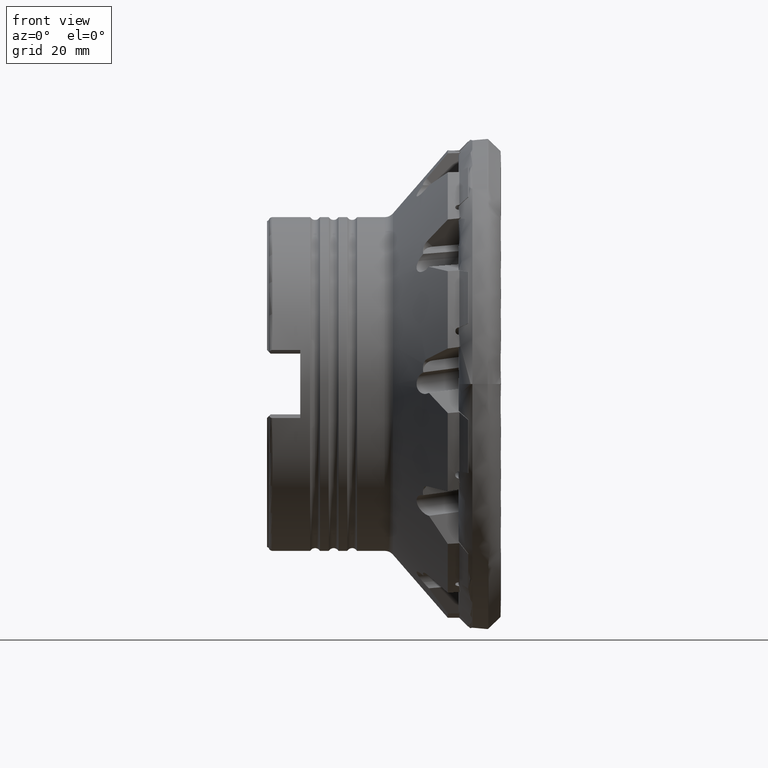
[diagram: clean part render]
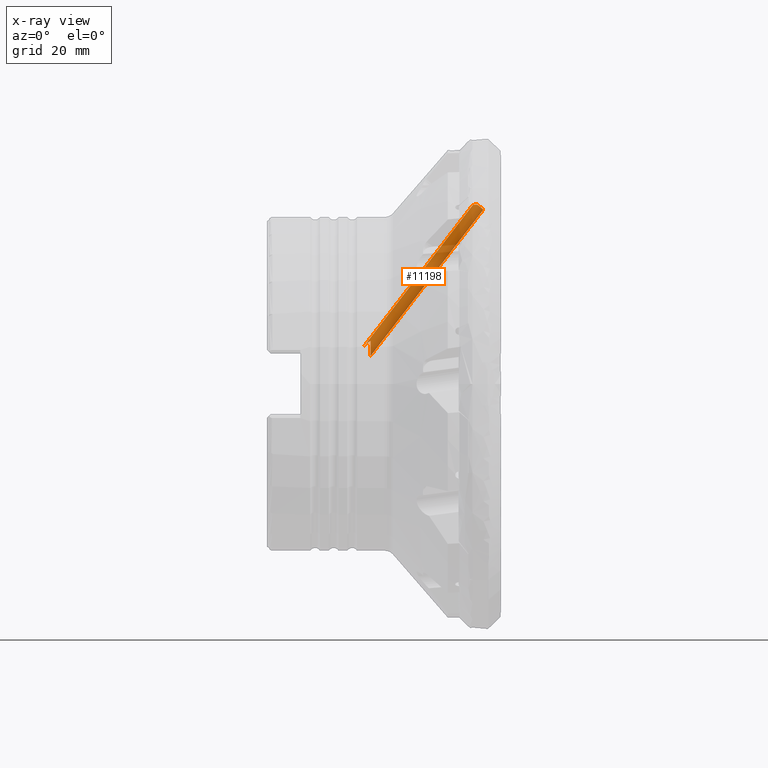
[diagram: x-ray — body ghosted, one internal face saturated and labeled with its STEP entity id]
A machine part, front view, then the same camera in x-ray: the body is ghosted and one INTERNAL B-rep face — a face not visible from any outside direction — is saturated and labeled: STEP entity #11198.
In plain terms, the highlighted cylindrical surface (edge-blend (fillet) strip) has radius 1.5 mm, axis along (-0.604, -0.1464, -0.7834).
Its self-contained STEP definition (entity closure, byte-faithful):
#129 = CARTESIAN_POINT ( 'NONE',  ( -5.540160540524638600, 23.20102953590737400, 48.34085867472153800 ) ) ;
#466 = LINE ( 'NONE', #20754, #5932 ) ;
#1017 = ORIENTED_EDGE ( 'NONE', *, *, #17368, .T. ) ;
#1099 = EDGE_CURVE ( 'NONE', #21094, #21020, #18274, .T. ) ;
#1325 = CARTESIAN_POINT ( 'NONE',  ( -34.14999999999999900, 16.47185018384749000, 11.60606098212838300 ) ) ;
#1823 = CYLINDRICAL_SURFACE ( 'NONE', #4550, 1.500000000000000400 ) ;
#1941 = B_SPLINE_CURVE_WITH_KNOTS ( 'NONE', 3,
 ( #13584, #129, #15275, #5213, #16931, #6880, #18637, #8560, #20363, #10277 ),
 .UNSPECIFIED., .F., .F.,
 ( 4, 2, 2, 2, 4 ),
 ( 3.415202341432597800E-015, 0.0004763234008006481600, 0.0009526468015978812000, 0.001428970202395114200, 0.001905293603192347200 ),
 .UNSPECIFIED. ) ;
#2245 = CIRCLE ( 'NONE', #6708, 1.499999999999999300 ) ;
#2263 = VERTEX_POINT ( 'NONE', #12490 ) ;
#4550 = AXIS2_PLACEMENT_3D ( 'NONE', #10368, #20442, #8806 ) ;
#5213 = CARTESIAN_POINT ( 'NONE',  ( -5.963811036317657100, 23.41961788925818800, 48.34775871760438500 ) ) ;
#5682 = CARTESIAN_POINT ( 'NONE',  ( -5.038579276834702200, 24.52045439170525000, 47.80845818798745500 ) ) ;
#5932 = VECTOR ( 'NONE', #20823, 1000.000000000000200 ) ;
#6244 = CARTESIAN_POINT ( 'NONE',  ( -34.14999999999999900, 15.70037446949612900, 7.595092474737160000 ) ) ;
#6645 = ORIENTED_EDGE ( 'NONE', *, *, #13342, .T. ) ;
#6708 = AXIS2_PLACEMENT_3D ( 'NONE', #5682, #17405, #7358 ) ;
#6762 = FACE_OUTER_BOUND ( 'NONE', #8168, .T. ) ;
#6880 = CARTESIAN_POINT ( 'NONE',  ( -6.322273186589583800, 23.73438040198447400, 48.31065290393135600 ) ) ;
#7148 = VERTEX_POINT ( 'NONE', #19391 ) ;
#7358 = DIRECTION ( 'NONE',  ( -0.7660444431189792300, 0.3778210773300734200, 0.5200261000100627800 ) ) ;
#7862 = VECTOR ( 'NONE', #15959, 1000.000000000000200 ) ;
#8168 = EDGE_LOOP ( 'NONE', ( #1017, #6645, #12653, #15627, #16958, #17078 ) ) ;
#8560 = CARTESIAN_POINT ( 'NONE',  ( -6.588451538194158600, 24.12251665075414700, 48.21669225176428600 ) ) ;
#8806 = DIRECTION ( 'NONE',  ( -0.7919367882781241900, 0.0000000000000000000, 0.6106030816919690900 ) ) ;
#9628 = EDGE_CURVE ( 'NONE', #7148, #21020, #12356, .T. ) ;
#9633 = CARTESIAN_POINT ( 'NONE',  ( -34.14999999999999900, 16.47185018384749000, 11.60606098212838300 ) ) ;
#10076 = CARTESIAN_POINT ( 'NONE',  ( -34.50051525135749100, 16.57684098665976800, 11.45705325441882700 ) ) ;
#10247 = VERTEX_POINT ( 'NONE', #11599 ) ;
#10277 = CARTESIAN_POINT ( 'NONE',  ( -6.695526947078620900, 24.40675863515932800, 48.11602654018397400 ) ) ;
#10368 = CARTESIAN_POINT ( 'NONE',  ( -5.038579276834702200, 24.52045439170525000, 47.80845818798745500 ) ) ;
#10894 = CARTESIAN_POINT ( 'NONE',  ( -35.65373505611028500, 17.16569651891070700, 10.55796138825414800 ) ) ;
#10900 = CARTESIAN_POINT ( 'NONE',  ( -6.226484459251889100, 24.52045439170525000, 48.72436281052541300 ) ) ;
#11198 = ADVANCED_FACE ( 'NONE', ( #6762 ), #1823, .F. ) ;
#11530 = CARTESIAN_POINT ( 'NONE',  ( -5.385451936854742900, 23.15771765600368700, 48.33059604995501200 ) ) ;
#11599 = CARTESIAN_POINT ( 'NONE',  ( -34.14999999999999900, 17.17590699765432700, 7.595092474737157300 ) ) ;
#12356 = LINE ( 'NONE', #10900, #7862 ) ;
#12490 = CARTESIAN_POINT ( 'NONE',  ( -3.850674094417514800, 24.52045439170525000, 46.89255356544950400 ) ) ;
#12653 = ORIENTED_EDGE ( 'NONE', *, *, #15574, .T. ) ;
#13015 = CARTESIAN_POINT ( 'NONE',  ( -34.81802873428526400, 16.70903504428939400, 11.26515627772385600 ) ) ;
#13342 = EDGE_CURVE ( 'NONE', #2263, #10247, #466, .T. ) ;
#13513 = CARTESIAN_POINT ( 'NONE',  ( -35.87290414333268300, 17.33417126738207500, 10.27370461289721600 ) ) ;
#13564 = CARTESIAN_POINT ( 'NONE',  ( -35.39858860151156300, 17.00527016537650800, 10.81278801583513700 ) ) ;
#13584 = CARTESIAN_POINT ( 'NONE',  ( -5.385451936854742900, 23.15771765600368700, 48.33059604995501200 ) ) ;
#14433 =( BOUNDED_CURVE ( )  B_SPLINE_CURVE ( 3, ( #17967, #6244, #19698, #9633 ),
 .UNSPECIFIED., .F., .F. ) 
 B_SPLINE_CURVE_WITH_KNOTS ( ( 4, 4 ),
 ( 6.170771650172895300, 8.426654250190019000 ),
 .UNSPECIFIED. ) 
 CURVE ( )  GEOMETRIC_REPRESENTATION_ITEM ( )  RATIONAL_B_SPLINE_CURVE ( ( 1.000000000000000000, 0.6190138772248409100, 0.6190138772248409100, 1.000000000000000000 ) ) 
 REPRESENTATION_ITEM ( '' )  );
#14779 = CARTESIAN_POINT ( 'NONE',  ( -34.14999999999999900, 16.47185018384749000, 11.60606098212838300 ) ) ;
#15275 = CARTESIAN_POINT ( 'NONE',  ( -5.686684502820355600, 23.26220237444645300, 48.34744969879076100 ) ) ;
#15574 = EDGE_CURVE ( 'NONE', #10247, #21094, #14433, .T. ) ;
#15627 = ORIENTED_EDGE ( 'NONE', *, *, #1099, .T. ) ;
#15959 = DIRECTION ( 'NONE',  ( -0.6040227735550561800, -0.1464149367971199200, -0.7834022946797850600 ) ) ;
#16931 = CARTESIAN_POINT ( 'NONE',  ( -6.093931639600823400, 23.51643776652398500, 48.34123496881677100 ) ) ;
#16958 = ORIENTED_EDGE ( 'NONE', *, *, #9628, .F. ) ;
#17078 = ORIENTED_EDGE ( 'NONE', *, *, #18013, .F. ) ;
#17368 = EDGE_CURVE ( 'NONE', #19400, #2263, #2245, .T. ) ;
#17405 = DIRECTION ( 'NONE',  ( 0.6040227735550562900, 0.1464149367971199500, 0.7834022946797851700 ) ) ;
#17698 = CARTESIAN_POINT ( 'NONE',  ( -35.87290414333268300, 17.33417126738207500, 10.27370461289721600 ) ) ;
#17967 = CARTESIAN_POINT ( 'NONE',  ( -34.14999999999999900, 17.17590699765432700, 7.595092474737157300 ) ) ;
#18013 = EDGE_CURVE ( 'NONE', #19400, #7148, #1941, .T. ) ;
#18274 = B_SPLINE_CURVE_WITH_KNOTS ( 'NONE', 3,
 ( #14779, #10076, #13015, #13564, #10894, #13513 ),
 .UNSPECIFIED., .F., .F.,
 ( 4, 2, 4 ),
 ( 0.01171290234827317300, 0.01288344307237102400, 0.01405398379646887400 ),
 .UNSPECIFIED. ) ;
#18637 = CARTESIAN_POINT ( 'NONE',  ( -6.424033696526692900, 23.85898113466587100, 48.28604146607434400 ) ) ;
#19391 = CARTESIAN_POINT ( 'NONE',  ( -6.695526947078620900, 24.40675863515932800, 48.11602654018397400 ) ) ;
#19400 = VERTEX_POINT ( 'NONE', #11530 ) ;
#19698 = CARTESIAN_POINT ( 'NONE',  ( -34.14999999999999900, 15.32124628960068700, 9.754962473868227200 ) ) ;
#20363 = CARTESIAN_POINT ( 'NONE',  ( -6.652481764687276900, 24.26255018115037000, 48.17185505549280600 ) ) ;
#20442 = DIRECTION ( 'NONE',  ( -0.6040227735550561800, -0.1464149367971199500, -0.7834022946797849500 ) ) ;
#20754 = CARTESIAN_POINT ( 'NONE',  ( -3.850674094417515700, 24.52045439170525000, 46.89255356544950400 ) ) ;
#20823 = DIRECTION ( 'NONE',  ( -0.6040227735550561800, -0.1464149367971199200, -0.7834022946797850600 ) ) ;
#21020 = VERTEX_POINT ( 'NONE', #17698 ) ;
#21094 = VERTEX_POINT ( 'NONE', #1325 ) ;